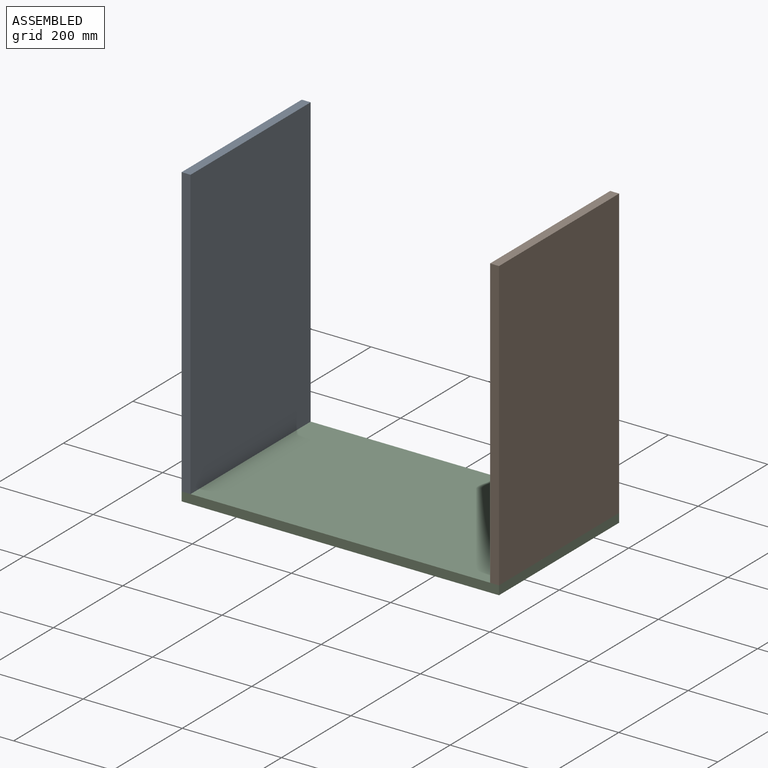
[diagram: assembled view]
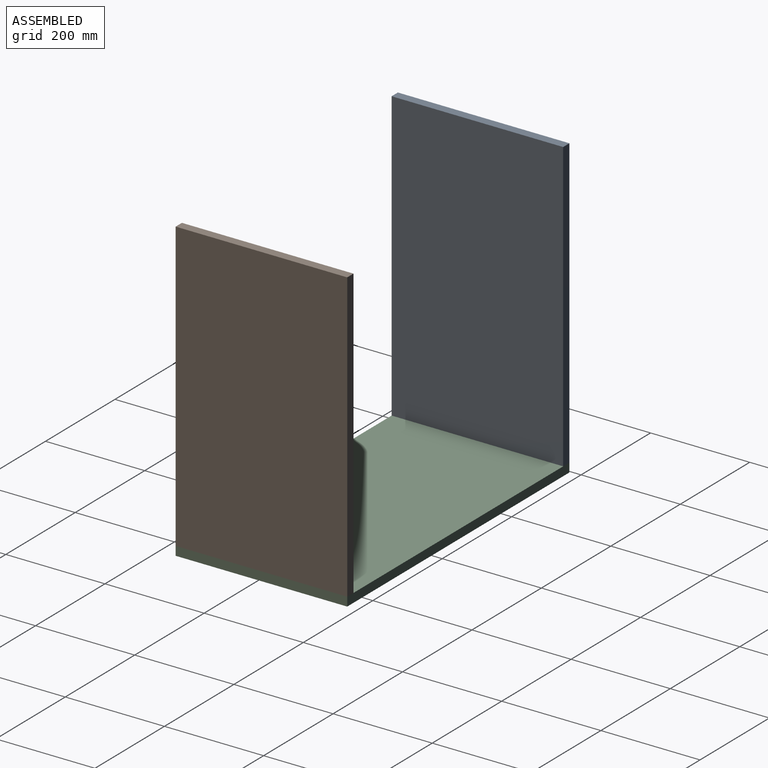
[diagram: assembled view, second angle]
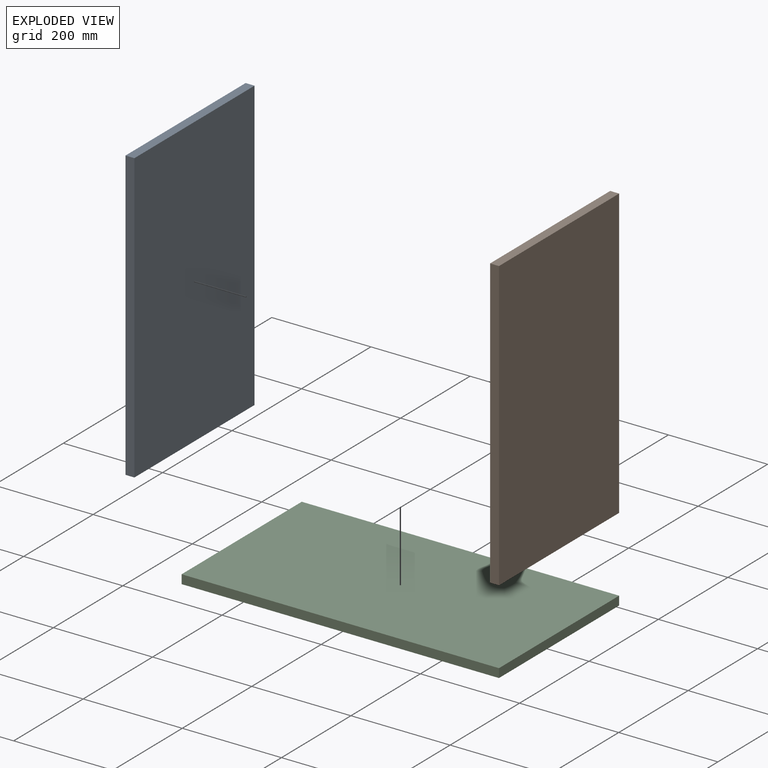
[diagram: exploded view]
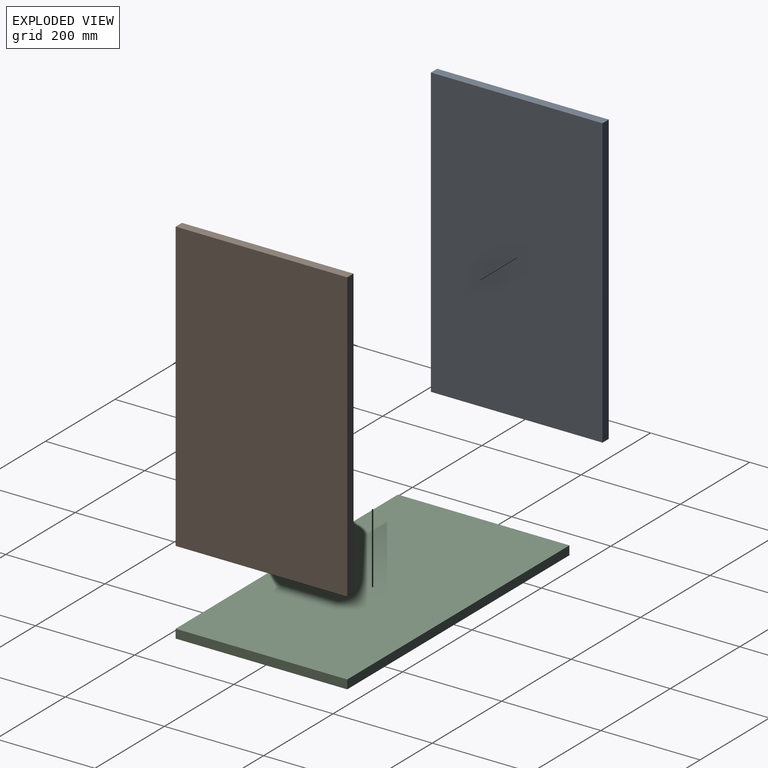
[diagram: exploded view, second angle]
ASSEMBLY  parts=3 mates=2
PART A: 6 faces, bbox 346x582x18 mm
  f0: plane 346x18mm, normal (0,1,0), area 6228mm2, adj f1,f3,f4,f5
  f1: plane 582x18mm, normal (-1,0,0), area 10476mm2, adj f0,f2,f4,f5
  f2: plane 346x18mm, normal (0,-1,0), area 6228mm2, adj f1,f3,f4,f5
  f3: plane 582x18mm, normal (1,0,0), area 10476mm2, adj f0,f2,f4,f5
  f4: plane 582x346mm, normal (0,0,1), area 201372mm2, adj f0,f1,f2,f3
  f5: plane 582x346mm, normal (0,0,-1), area 201372mm2, adj f0,f1,f2,f3
PART B: same geometry as A
PART C: 6 faces, bbox 640x346x18 mm
  f0: plane 346x18mm, normal (-1,0,0), area 6228mm2, adj f1,f3,f4,f5
  f1: plane 640x18mm, normal (0,-1,0), area 11520mm2, adj f0,f2,f4,f5
  f2: plane 346x18mm, normal (1,0,0), area 6228mm2, adj f1,f3,f4,f5
  f3: plane 640x18mm, normal (0,1,0), area 11520mm2, adj f0,f2,f4,f5
  f4: plane 640x346mm, normal (0,0,1), area 221440mm2, adj f0,f1,f2,f3
  f5: plane 640x346mm, normal (0,0,-1), area 221440mm2, adj f0,f1,f2,f3
PLACE A rot(axis=(0.58,0.58,0.58),120deg) t=(-306.6,154.93,295.89)mm
PLACE B rot(axis=(0.58,-0.58,-0.58),120deg) t=(333.4,-136.93,295.89)mm
PLACE C t=(-487.22,124.43,-10.54)mm fixed
MATE fastened B.f5 <-> C.f2  axis (1,0,0) through (333.4,-164,7.46)mm
MATE fastened A.f5 <-> C.f0  axis (-1,0,0) through (-306.6,-164,7.46)mm
